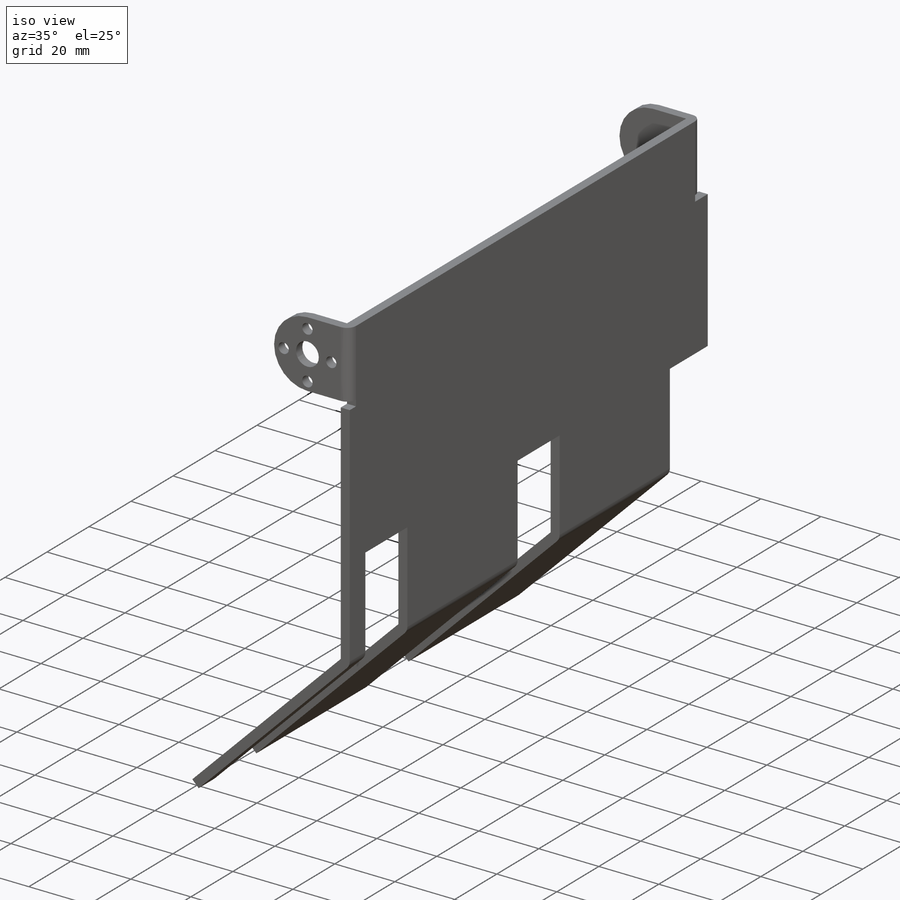
[diagram: iso view]
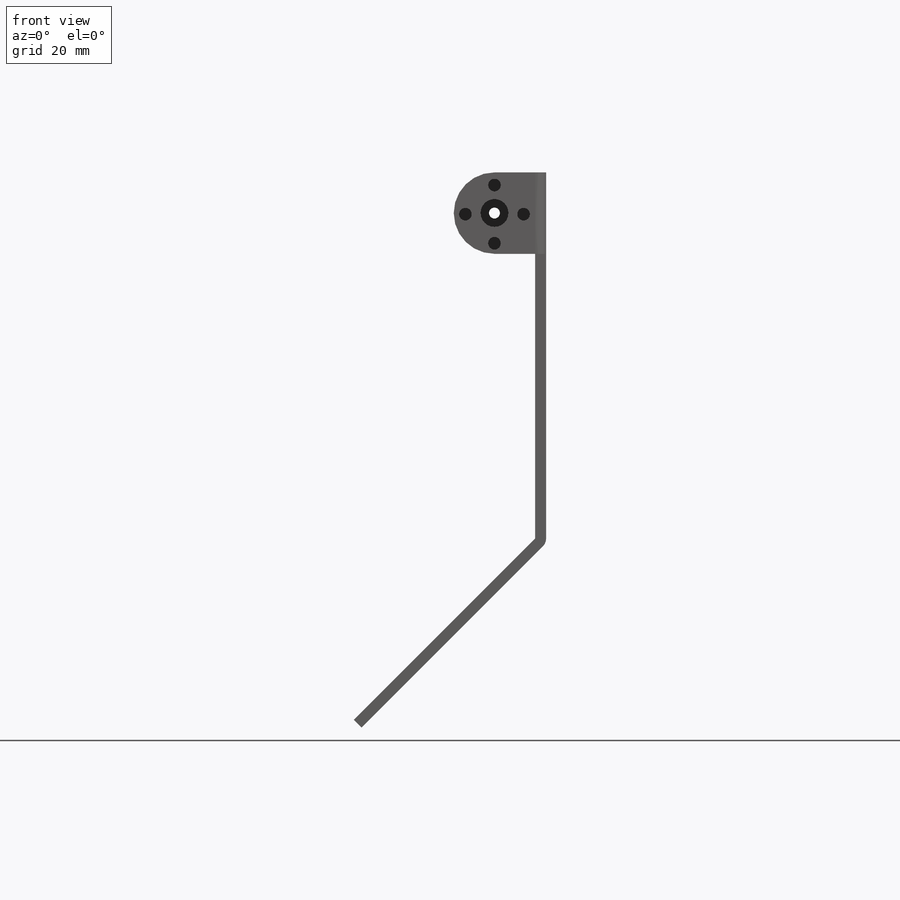
[diagram: front view]
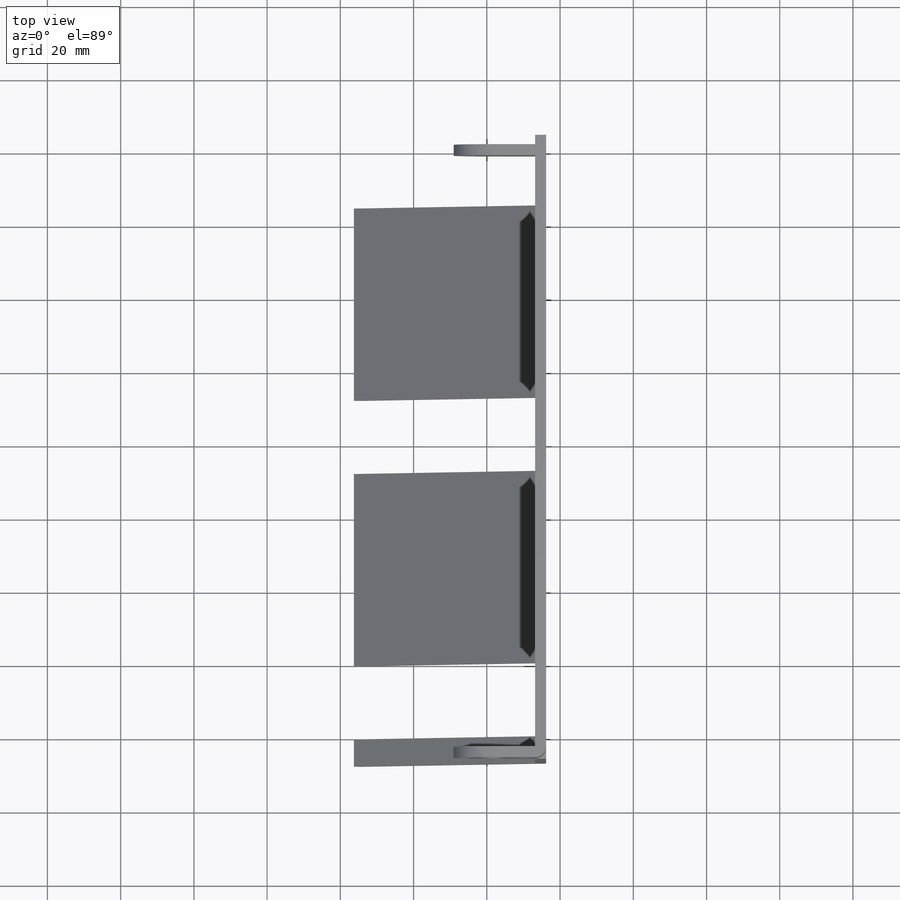
[diagram: top view]
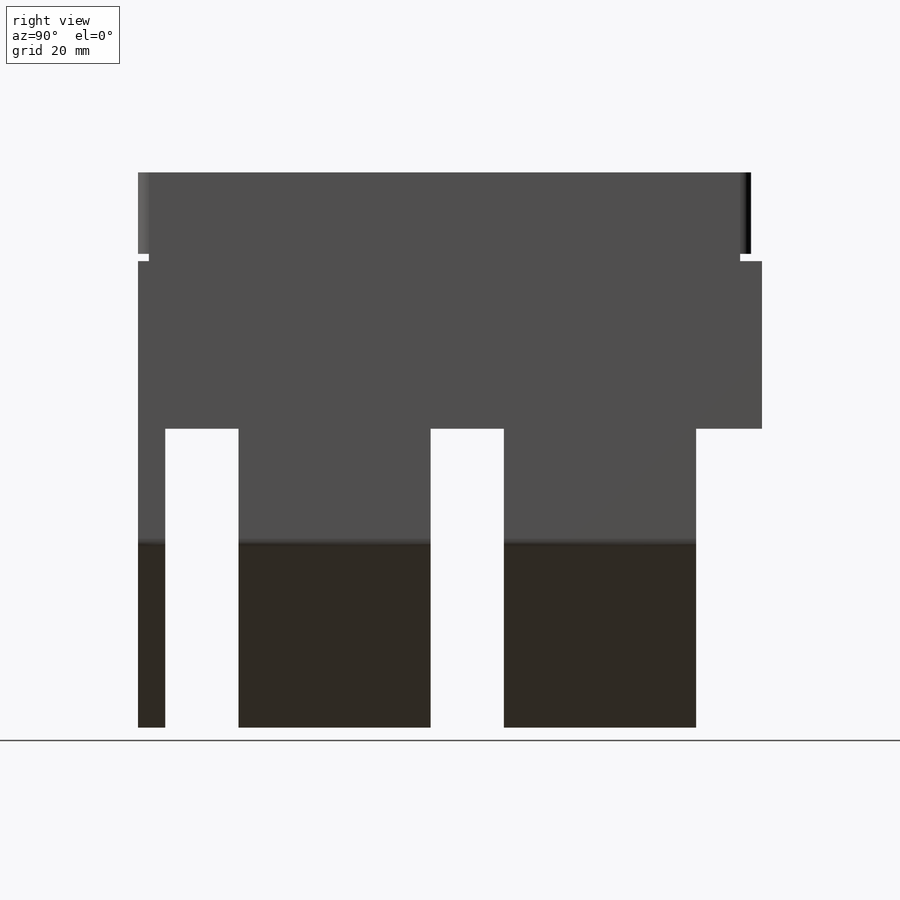
[diagram: right view]
SOLIDWORKS PART (.sldprt)
format: sldprt  version: not decoded by parser v0  size: 256,512 bytes
history: native  units: mm
features: sketch x5, extrude x4, plane x3, material x1, cut_extrude x1, fillet x1 (+13 scaffold rows collapsed)
feature tree (28):
  scaffold x13  (default folders/planes/origin — collapsed)
  material  "Matériau <non spécifié>"
  plane  "Plan de face"
  plane  "Plan de dessus"
  plane  "Plan de droite"
  sketch  "Esquisse1"  dims[c1.D1=3.0mm c1.D2=100.0mm c1.D3=100.0mm c1.D4=~76.388141mm c2.D4=135.0deg c2.D5=70.0mm c2.D6=3.0mm c2.D7=70.0mm]
  extrude  "Boss.-Extru.1"  Depth=167.45mm
  sketch  "Esquisse2"  dims[c1.D1=20.0mm c1.D2=7.45mm c1.D3=70.0mm c1.D4=52.5mm c1.D5=20.0mm c1.D6=15.0mm c1.D7=0.0mm c1.D8=0.0mm c1.D9=0.0mm c1.D10=22.23mm c1.D11=2.0mm c2.D10=22.23mm c2.D12=3.0mm c2.D13=3.0mm]
  cut_extrude  "Enlèv. mat.-Extru.1"  [1 undecoded]
  sketch  "Esquisse3"  dims[c1.D5=7.6mm c1.D6=3.45mm c1.D7=7.6mm c2.D5=7.6mm c2.D6=3.45mm c2.D1=22.23mm c2.D2=11.115mm c2.D3=11.115mm c2.D4=0.0mm c2.D7=7.94mm c3.D1=11.115mm c3.D2=22.23mm c3.D3=7.94mm c3.D4=7.94mm c3.D8=4.0]
  extrude  "Boss.-Extru.2"  Depth=3mm
  sketch  "Esquisse4"  dims[c1.D3=3.0mm c1.D1=11.115mm c1.D2=0.0mm c2.D3=22.23mm c2.D2=22.23mm]
  extrude  "Boss.-Extru.3"  Depth=3mm
  sketch  "Esquisse5"  dims[D1=45.77mm]
  extrude  "Boss.-Extru.4"  Depth=3mm
  fillet  "Congé1"  Radius=3mm
decode coverage: 10 of 11 modeling features carry decoded parameters
note: ~ marks probable driven/reference dimensions
note: 1 parameter value undecoded
note: suppression state not decoded; provenance and decode notes live in map.json
